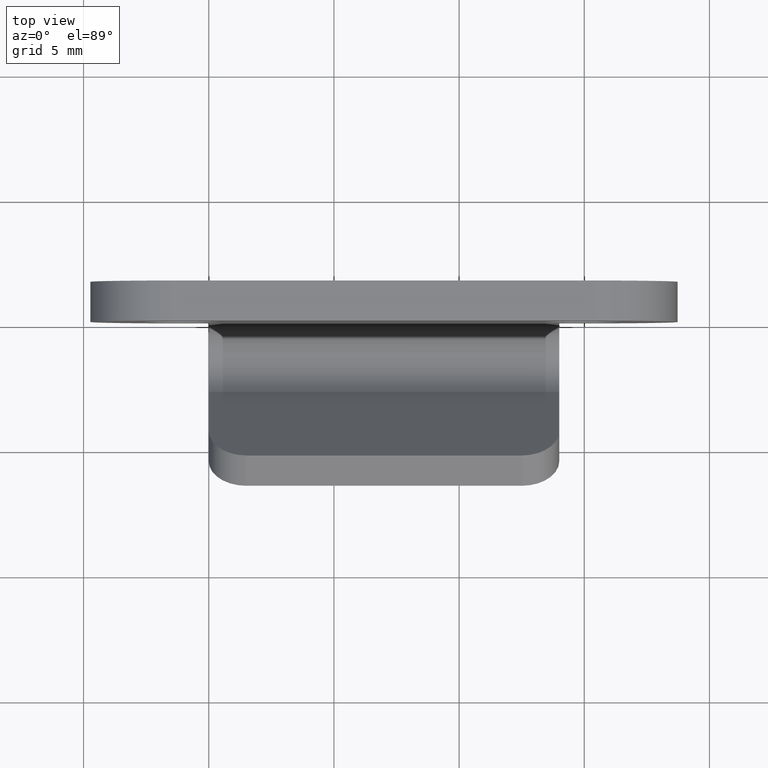
[diagram: clean part render]
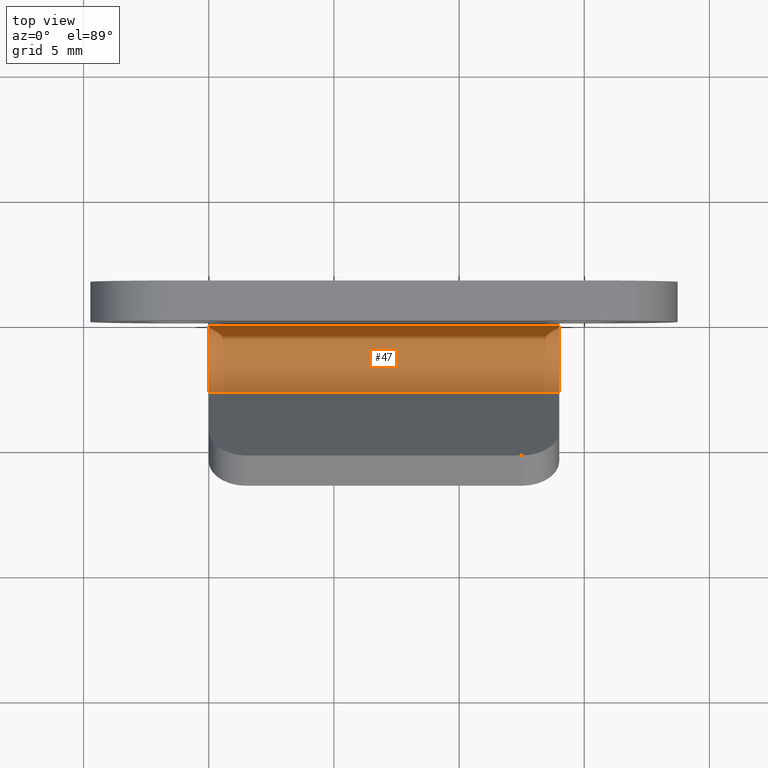
[diagram: same view with one face highlighted and labeled with its STEP entity id]
A machine part, top view. The second image highlights one B-rep face of the part: STEP entity #47.
In plain terms, the highlighted cylindrical surface (partial cylindrical patch) has radius 1.5 mm, axis along (1, -0, -0).
Its self-contained STEP definition (entity closure, byte-faithful):
#47=ADVANCED_FACE('',(#133),#132,.F.);
#132=CYLINDRICAL_SURFACE('',#304,1.50000000000E+00);
#133=FACE_OUTER_BOUND('',#305,.T.);
#301=CARTESIAN_POINT('',(-9.99999999996E-01,-1.50000000000E+00,-9.15000000000E+00));
#302=DIRECTION('',(1.00000000000E+00,-0.00000000000E+00,-0.00000000000E+00));
#303=DIRECTION('',(-0.00000000000E+00,-1.00000000000E+00,-4.89124995321E-08));
#304=AXIS2_PLACEMENT_3D('',#301,#302,#303);
#305=EDGE_LOOP('',(#408,#409,#410,#411));
#408=ORIENTED_EDGE('',*,*,#509,.T.);
#409=ORIENTED_EDGE('',*,*,#510,.T.);
#410=ORIENTED_EDGE('',*,*,#501,.F.);
#411=ORIENTED_EDGE('',*,*,#481,.F.);
#481=EDGE_CURVE('',#558,#565,#566,.T.);
#501=EDGE_CURVE('',#565,#702,#703,.T.);
#509=EDGE_CURVE('',#558,#756,#757,.T.);
#510=EDGE_CURVE('',#756,#702,#763,.T.);
#558=VERTEX_POINT('',#908);
#565=VERTEX_POINT('',#912);
#566=CIRCLE('',#916,1.50000000000E+00);
#702=VERTEX_POINT('',#996);
#703=LINE('',#997,#998);
#756=VERTEX_POINT('',#1030);
#757=LINE('',#1031,#1032);
#763=CIRCLE('',#1037,1.50000000000E+00);
#908=CARTESIAN_POINT('',(-1.50000000000E+01,-2.61898286298E+00,-1.01489381124E+01));
#912=CARTESIAN_POINT('',(-1.50000000000E+01,2.16840434497E-16,-9.15000000000E+00));
#913=CARTESIAN_POINT('',(-1.50000000000E+01,-1.50000000000E+00,-9.15000000000E+00));
#914=DIRECTION('',(1.00000000000E+00,-1.54356114616E-14,-4.04153551887E-13));
#915=DIRECTION('',(2.80664380625E-13,7.45988575320E-01,6.65958741584E-01));
#916=AXIS2_PLACEMENT_3D('',#913,#914,#915);
#996=CARTESIAN_POINT('',(-9.99999999996E-01,2.16840434497E-16,-9.15000000000E+00));
#997=CARTESIAN_POINT('',(-1.50000000000E+01,2.22044604925E-16,-9.15000000000E+00));
#998=VECTOR('',#999,1.40000000000E+01);
#999=DIRECTION('',(1.00000000000E+00,0.00000000000E+00,0.00000000000E+00));
#1030=CARTESIAN_POINT('',(-9.99999999996E-01,-2.61898286298E+00,-1.01489381124E+01));
#1031=CARTESIAN_POINT('',(-1.50000000000E+01,-2.61898286298E+00,-1.01489381124E+01));
#1032=VECTOR('',#1033,1.40000000000E+01);
#1033=DIRECTION('',(1.00000000000E+00,0.00000000000E+00,0.00000000000E+00));
#1034=CARTESIAN_POINT('',(-9.99999999996E-01,-1.50000000000E+00,-9.15000000000E+00));
#1035=DIRECTION('',(1.00000000000E+00,2.31788381774E-16,3.90843146639E-13));
#1036=DIRECTION('',(-2.60458321577E-13,7.45988575320E-01,6.65958741584E-01));
#1037=AXIS2_PLACEMENT_3D('',#1034,#1035,#1036);